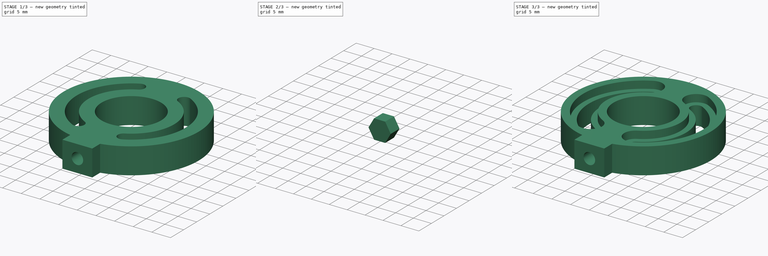
[diagram: build sequence overview — one tinted view per stage of 3, left to right]
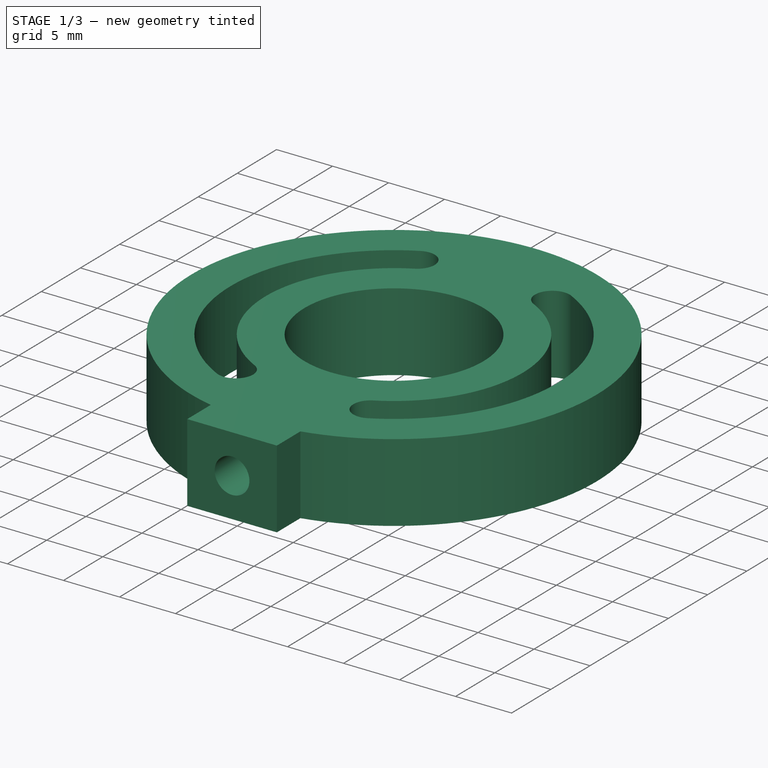
[diagram: stage 1 of 3 — iso view after this stage's code; geometry added in this stage tinted green]
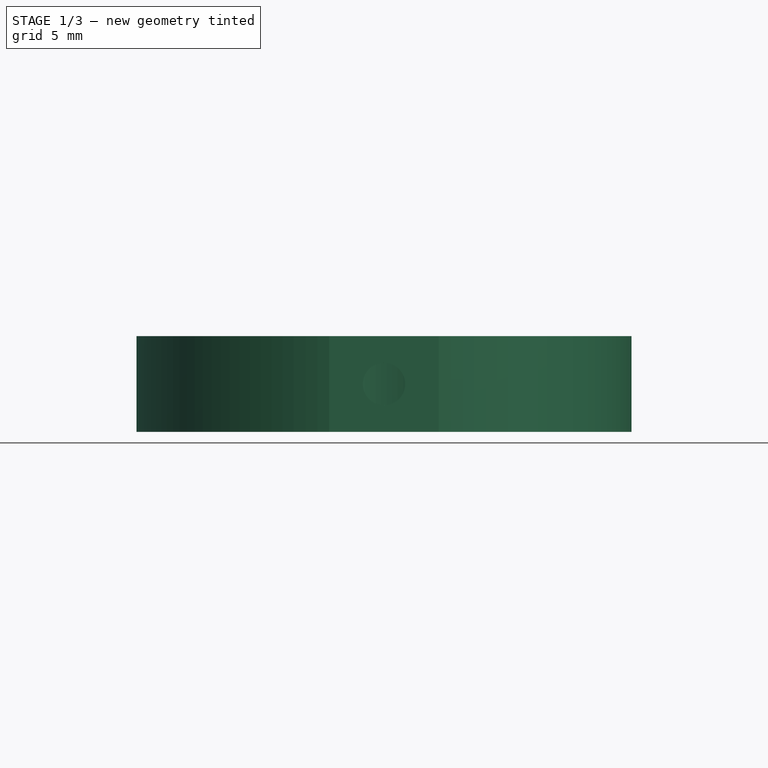
[diagram: stage 1 of 3 — front view after this stage's code; geometry added in this stage tinted green]
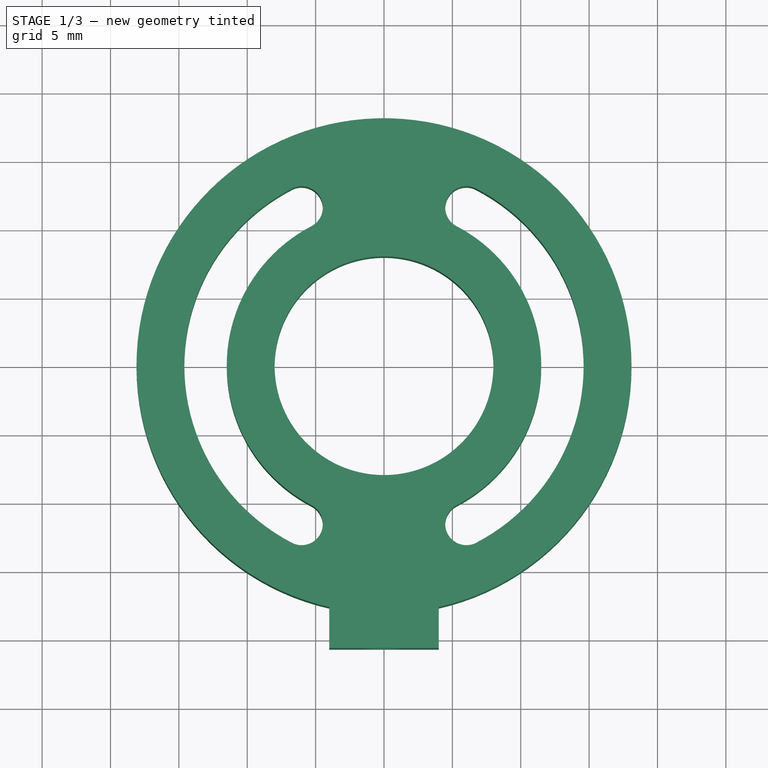
[diagram: stage 1 of 3 — top view after this stage's code; geometry added in this stage tinted green]
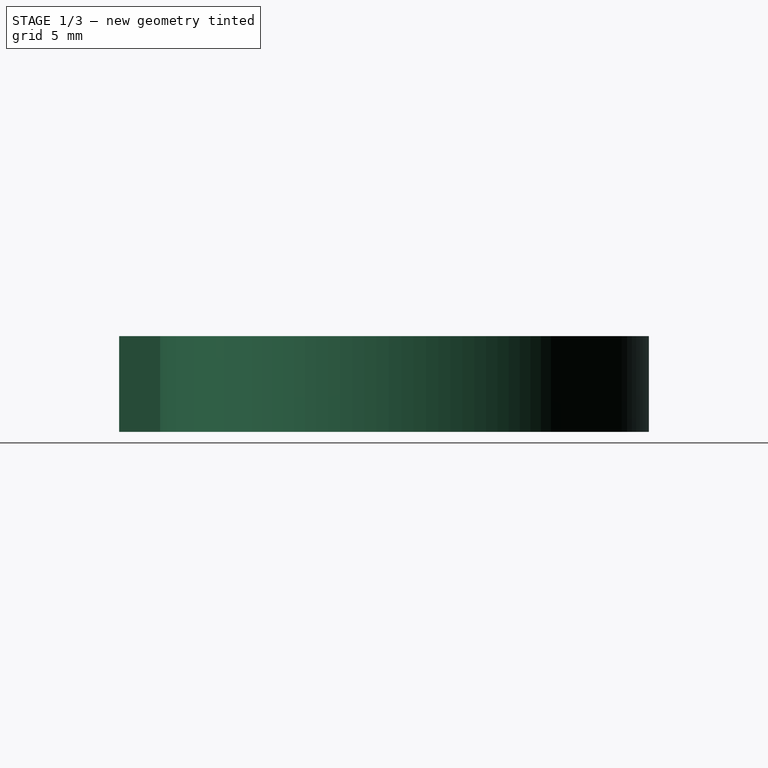
[diagram: stage 1 of 3 — right view after this stage's code; geometry added in this stage tinted green]
FCSTD DOCUMENT  (FreeCAD 0.16RUnknown)
Label: joint-i.008.top.screws
License: All rights reserved
LicenseURL: http://en.wikipedia.org/wiki/All_rights_reserved
objects: Sketcher::SketchObject×4, Part::Extrusion×2, PartDesign::Pocket×2, Part::Cut×1
note: 11 computed .brp shape members not serialized (recipe doc carries the construction recipe); baked Part::Feature solids carry a one-line shape summary decoded from their .brp

FEATURE [Sketcher::SketchObject] Sketch
  sketch-geometry (29):
    g0: Circle CenterX=0 CenterY=0 CenterZ=0 NormalX=0 NormalY=0 NormalZ=1 Radius=8
    g1: ArcOfCircle CenterX=0 CenterY=0 CenterZ=0 NormalX=0 NormalY=0 NormalZ=1 Radius=18.1 StartAngle=4.93522 EndAngle=10.7727
    g2: ArcOfCircle CenterX=0 CenterY=0 CenterZ=0 NormalX=0 NormalY=0 NormalZ=1 Radius=11.5 StartAngle=2.05076 EndAngle=4.23242
    g3: ArcOfCircle CenterX=0 CenterY=0 CenterZ=0 NormalX=0 NormalY=0 NormalZ=1 Radius=14.6 StartAngle=2.05076 EndAngle=4.23242
    g4: ArcOfCircle CenterX=0 CenterY=0 CenterZ=0 NormalX=0 NormalY=0 NormalZ=1 Radius=11.5 StartAngle=5.19235 EndAngle=7.37402
    g5: ArcOfCircle CenterX=0 CenterY=0 CenterZ=0 NormalX=0 NormalY=0 NormalZ=1 Radius=14.6 StartAngle=5.19235 EndAngle=7.37402
    g6: ArcOfCircle [constr] CenterX=0 CenterY=0 CenterZ=0 NormalX=0 NormalY=0 NormalZ=1 Radius=11.5 StartAngle=1.09083 EndAngle=2.05076
    g7: ArcOfCircle [constr] CenterX=0 CenterY=0 CenterZ=0 NormalX=0 NormalY=0 NormalZ=1 Radius=14.6 StartAngle=1.09083 EndAngle=2.05076
    g8: ArcOfCircle [constr] CenterX=0 CenterY=0 CenterZ=0 NormalX=0 NormalY=0 NormalZ=1 Radius=11.5 StartAngle=4.23242 EndAngle=5.19235
    g9: ArcOfCircle [constr] CenterX=0 CenterY=0 CenterZ=0 NormalX=0 NormalY=0 NormalZ=1 Radius=14.6 StartAngle=4.23242 EndAngle=5.19235
    g10: LineSegment [constr] StartX=-8.35765 StartY=16.0549 StartZ=0 EndX=-6.74153 EndY=12.9504 EndZ=0
    g11: LineSegment [constr] StartX=-6.74153 StartY=12.9504 StartZ=0 EndX=-5.31011 EndY=10.2006 EndZ=0
    g12: LineSegment [constr] StartX=-5.31011 StartY=10.2006 StartZ=0 EndX=-3.69399 EndY=7.09609 EndZ=0
    g13: LineSegment [constr] StartX=-3.69399 StartY=7.09609 StartZ=0 EndX=0 EndY=0 EndZ=0
    g14: LineSegment [constr] StartX=0 StartY=0 StartZ=0 EndX=5.31011 EndY=-10.2006 EndZ=0
    g15: LineSegment [constr] StartX=5.31011 StartY=-10.2006 StartZ=0 EndX=6.74153 EndY=-12.9504 EndZ=0
    g16: LineSegment [constr] StartX=6.74153 StartY=12.9504 StartZ=0 EndX=5.31011 EndY=10.2006 EndZ=0
    g17: LineSegment [constr] StartX=5.31011 StartY=10.2006 StartZ=0 EndX=0 EndY=0 EndZ=0
    g18: LineSegment [constr] StartX=0 StartY=0 StartZ=0 EndX=-5.31011 EndY=-10.2006 EndZ=0
    g19: LineSegment [constr] StartX=-5.31011 StartY=-10.2006 StartZ=0 EndX=-6.74153 EndY=-12.9504 EndZ=0
    g20: LineSegment [constr] StartX=-6.74153 StartY=12.9504 StartZ=0 EndX=6.74153 EndY=12.9504 EndZ=0
    g21: ArcOfCircle CenterX=-6.02582 CenterY=11.5755 CenterZ=0 NormalX=0 NormalY=0 NormalZ=1 Radius=1.55 StartAngle=5.19235 EndAngle=8.33395
    g22: ArcOfCircle CenterX=6.02582 CenterY=11.5755 CenterZ=0 NormalX=0 NormalY=0 NormalZ=1 Radius=1.55 StartAngle=1.09083 EndAngle=4.23242
    g23: ArcOfCircle CenterX=-6.02582 CenterY=-11.5755 CenterZ=0 NormalX=0 NormalY=0 NormalZ=1 Radius=1.55 StartAngle=4.23242 EndAngle=7.37402
    g24: ArcOfCircle CenterX=6.02582 CenterY=-11.5755 CenterZ=0 NormalX=0 NormalY=0 NormalZ=1 Radius=1.55 StartAngle=2.05076 EndAngle=5.19235
    g25: LineSegment StartX=-4 StartY=-17.6525 StartZ=0 EndX=-4 EndY=-20.6525 EndZ=0
    g26: LineSegment StartX=-4 StartY=-20.6525 StartZ=0 EndX=4 EndY=-20.6525 EndZ=0
    g27: LineSegment StartX=4 StartY=-20.6525 StartZ=0 EndX=4 EndY=-17.6525 EndZ=0
    g28: LineSegment [constr] StartX=-4 StartY=-17.6525 StartZ=0 EndX=4 EndY=-17.6525 EndZ=0
  constraints (80):
    c: Coincident(g0,g1)
    c: Coincident(g0,g2)
    c: Coincident(g0,g3)
    c: Coincident(g0,g4)
    c: Coincident(g0,g5)
    c: Coincident(g0,g6)
    c: Coincident(g0,g7)
    c: Coincident(g0,g8)
    c: Coincident(g0,g9)
    c: Coincident(g0,g-1)
    c: Coincident(g3,g7)
    c: Coincident(g2,g6)
    c: Coincident(g4,g6)
    c: Coincident(g5,g7)
    c: Coincident(g2,g8)
    c: Coincident(g3,g9)
    c: Coincident(g5,g9)
    c: Coincident(g4,g8)
    c: Coincident(g10,g11)
    c: Coincident(g11,g12)
    c: Coincident(g12,g13)
    c: Coincident(g13,g14)
    c: Coincident(g14,g15)
    c: Coincident(g16,g17)
    c: Coincident(g17,g18)
    c: Coincident(g18,g19)
    c: Coincident(g3,g19)
    c: Coincident(g2,g18)
    c: Coincident(g4,g14)
    c: Coincident(g5,g15)
    c: Coincident(g0,g13)
    c: Coincident(g0,g17)
    c: Coincident(g2,g11)
    c: Coincident(g3,g10)
    c: Coincident(g5,g16)
    c: Coincident(g4,g16)
    c: PointOnObject(g12,g0)
    c: PointOnObject(g10,g1)
    c: Parallel(g10,g11)
    c: Parallel(g11,g12)
    c: Parallel(g12,g13)
    c: Parallel(g13,g15)
    c: Parallel(g15,g14)
    c: Parallel(g19,g18)
    c: Parallel(g18,g17)
    c: Parallel(g17,g16)
    c: Horizontal(g20)
    c: Coincident(g5,g20)
    c: Coincident(g3,g20)
    c: Angle(g16,g11) = 0.959931
    c: Equal(g10,g12)
    c: Radius(g0) = 8
    c: Distance(g10) = 3.5
    c: Distance(g11) = 3.1
    c: Coincident(g3,g23)
    c: Coincident(g2,g23)
    c: Coincident(g4,g24)
    c: Coincident(g5,g24)
    c: PointOnObject(g24,g15)
    c: PointOnObject(g23,g19)
    c: Coincident(g3,g21)
    c: Coincident(g2,g21)
    c: Coincident(g4,g22)
    c: Coincident(g5,g22)
    c: PointOnObject(g22,g16)
    c: PointOnObject(g21,g11)
    c: Vertical(g25)
    c: Coincident(g25,g26)
    c: Horizontal(g26)
    c: Coincident(g26,g27)
    c: Vertical(g27)
    c: PointOnObject(g28,g1)
    c: PointOnObject(g28,g1)
    c: Horizontal(g28)
    c: DistanceX(g26,g26) = 8
    c: DistanceY(g27,g28) = 3
    c: Coincident(g1,g27)
    c: Coincident(g1,g25)
    c: Coincident(g1,g28)
    c: Coincident(g1,g28)
FEATURE [Part::Extrusion] Extrude
  Base = -> Sketch
  Dir = (0,0,7)
  Solid = true
FEATURE [Sketcher::SketchObject] Sketch001
  ExternalGeometry = -> [Extrude]
  Placement = pos=(0,-20.6525,0) rot=(1,0,0;1.5708rad)
  Support = -> Extrude [Face3]
  sketch-geometry (3):
    g0: LineSegment [constr] StartX=-4 StartY=7 StartZ=0 EndX=0 EndY=3.5 EndZ=0
    g1: LineSegment [constr] StartX=0 StartY=3.5 StartZ=0 EndX=4 EndY=0 EndZ=0
    g2: Circle CenterX=0 CenterY=3.5 CenterZ=0 NormalX=0 NormalY=0 NormalZ=1 Radius=1.55
  constraints (7):
    c: Coincident(g0,g1)
    c: Coincident(g0,g-3)
    c: Coincident(g1,g-4)
    c: Equal(g1,g0)
    c: Parallel(g1,g0)
    c: Coincident(g0,g2)
    c: Radius(g2) = 1.55
FEATURE [PartDesign::Pocket] Pocket
  Length = 0
  Sketch = -> Sketch001
  Type = 3
  UpToFace = -> Extrude [Face13]
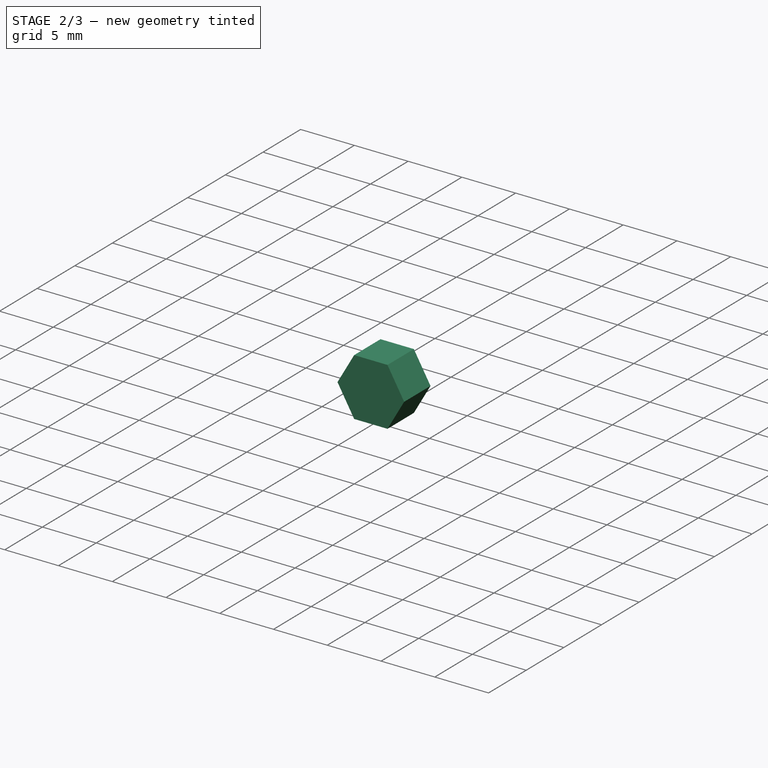
[diagram: stage 2 of 3 — iso view after this stage's code; geometry added in this stage tinted green]
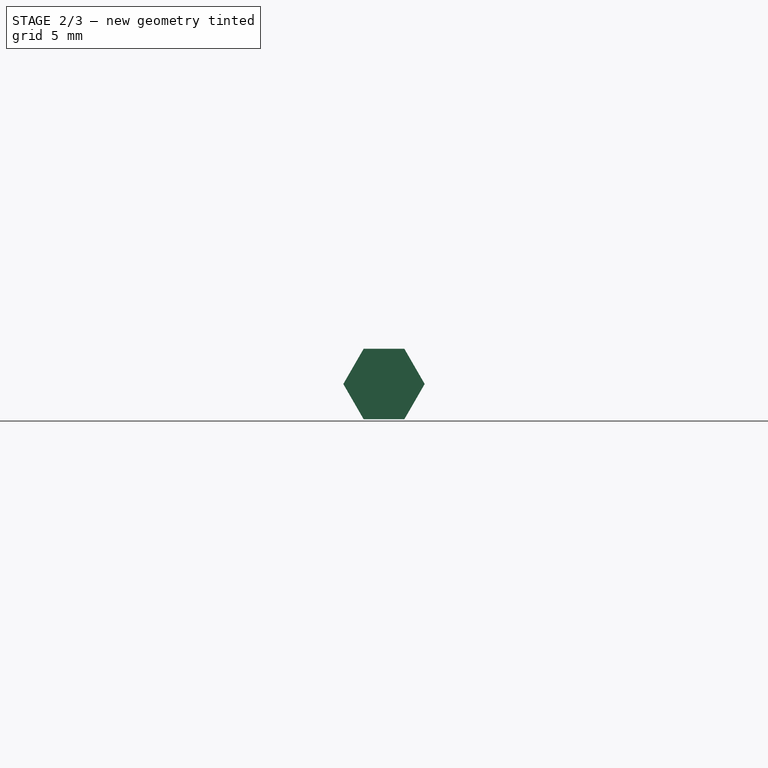
[diagram: stage 2 of 3 — front view after this stage's code; geometry added in this stage tinted green]
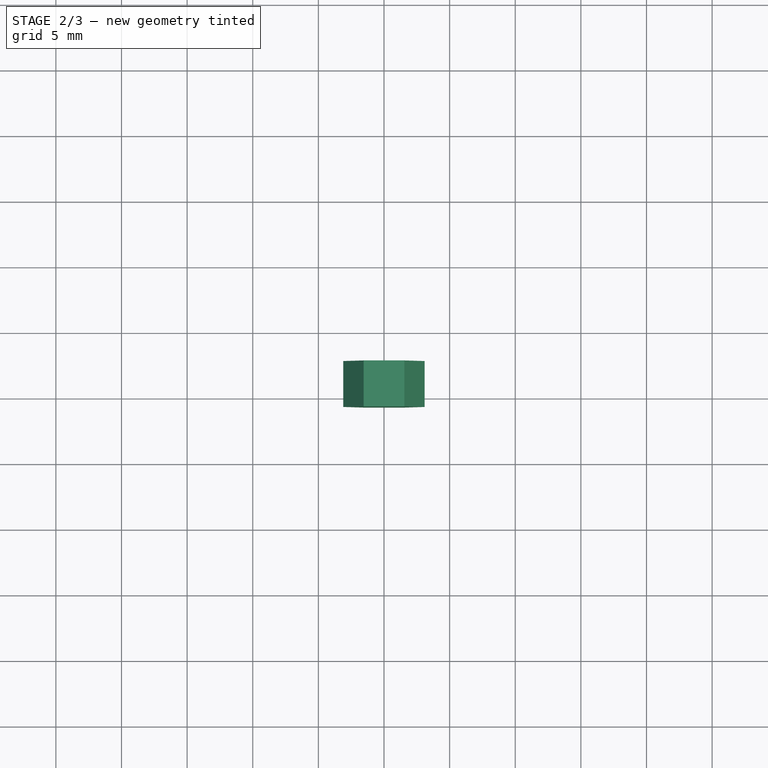
[diagram: stage 2 of 3 — top view after this stage's code; geometry added in this stage tinted green]
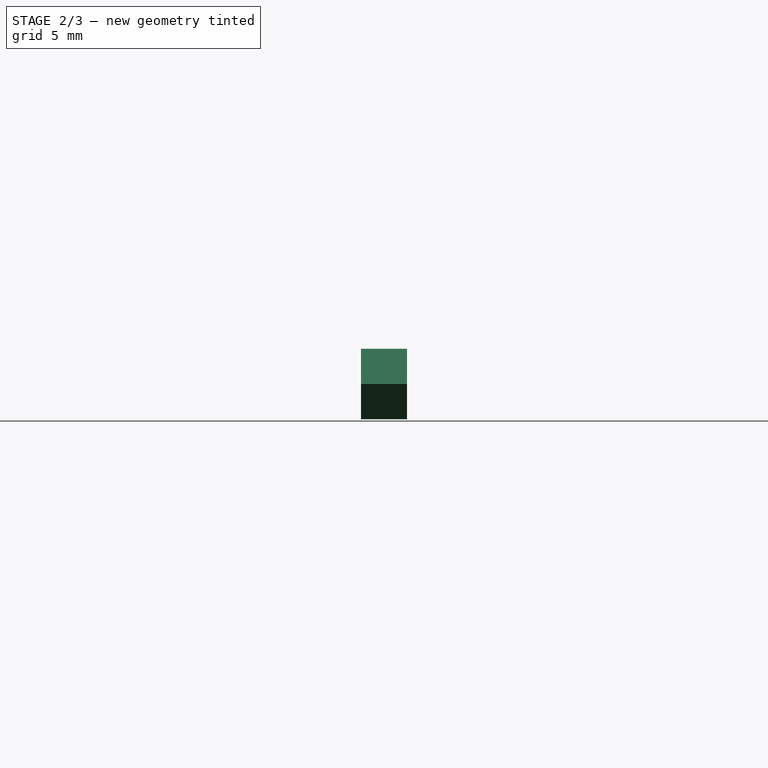
[diagram: stage 2 of 3 — right view after this stage's code; geometry added in this stage tinted green]
FEATURE [Sketcher::SketchObject] Sketch002
  ExternalGeometry = -> [Pocket]
  Placement = pos=(0,-20.6525,0) rot=(1,0,0;1.5708rad)
  Support = -> Pocket [Face8]
  sketch-geometry (7):
    g0: LineSegment StartX=-1.55 StartY=6.18468 StartZ=0 EndX=-3.1 EndY=3.5 EndZ=0
    g1: LineSegment StartX=-3.1 StartY=3.5 StartZ=0 EndX=-1.55 EndY=0.815321 EndZ=0
    g2: LineSegment StartX=-1.55 StartY=0.815321 StartZ=0 EndX=1.55 EndY=0.815321 EndZ=0
    g3: LineSegment StartX=1.55 StartY=0.815321 StartZ=0 EndX=3.1 EndY=3.5 EndZ=0
    g4: LineSegment StartX=3.1 StartY=3.5 StartZ=0 EndX=1.55 EndY=6.18468 EndZ=0
    g5: LineSegment StartX=1.55 StartY=6.18468 StartZ=0 EndX=-1.55 EndY=6.18468 EndZ=0
    g6: Circle [constr] CenterX=0 CenterY=3.5 CenterZ=0 NormalX=0 NormalY=0 NormalZ=1 Radius=3.1
  constraints (16):
    c: Coincident(g0,g1)
    c: Coincident(g1,g2)
    c: Coincident(g2,g3)
    c: Coincident(g3,g4)
    c: Coincident(g4,g5)
    c: Coincident(g5,g0)
    c: Equal(g0, g1-g5) x5
    c: PointOnObject(g0,g6)
    c: PointOnObject(g1,g6)
    c: PointOnObject(g2,g6)
    c: PointOnObject(g3,g6)
    c: PointOnObject(g4,g6)
    c: PointOnObject(g5,g6)
    c: Horizontal(g5)
    c: Coincident(g6,g-3)
    c: Radius(g6) = 3.1
FEATURE [Part::Extrusion] Extrude001
  Base = -> Sketch002
  Dir = (0,3.5,0)
  Placement = pos=(0,10,0) rot=(0,0,1;0rad)
  Solid = true
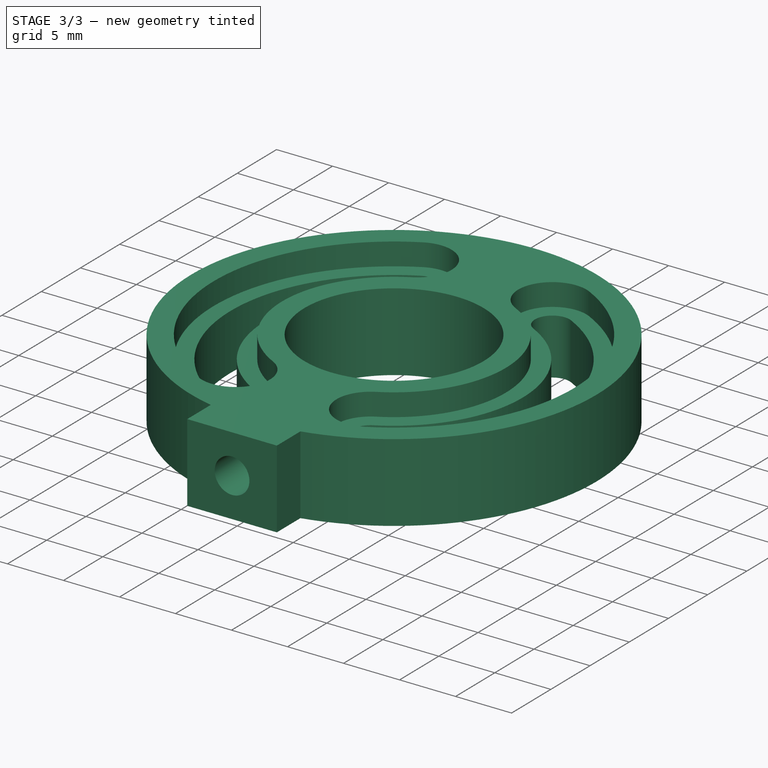
[diagram: stage 3 of 3 — iso view after this stage's code; geometry added in this stage tinted green]
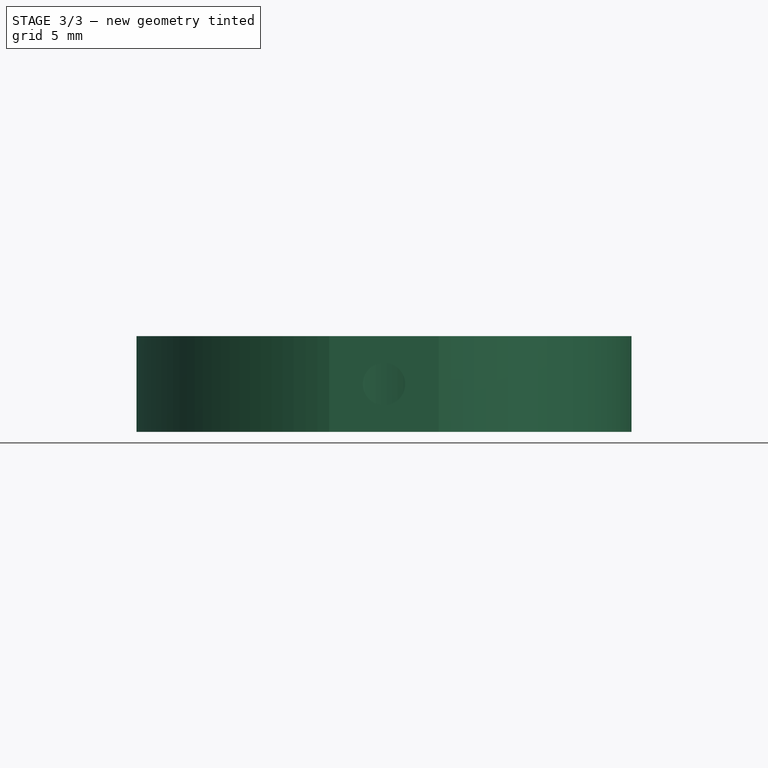
[diagram: stage 3 of 3 — front view after this stage's code; geometry added in this stage tinted green]
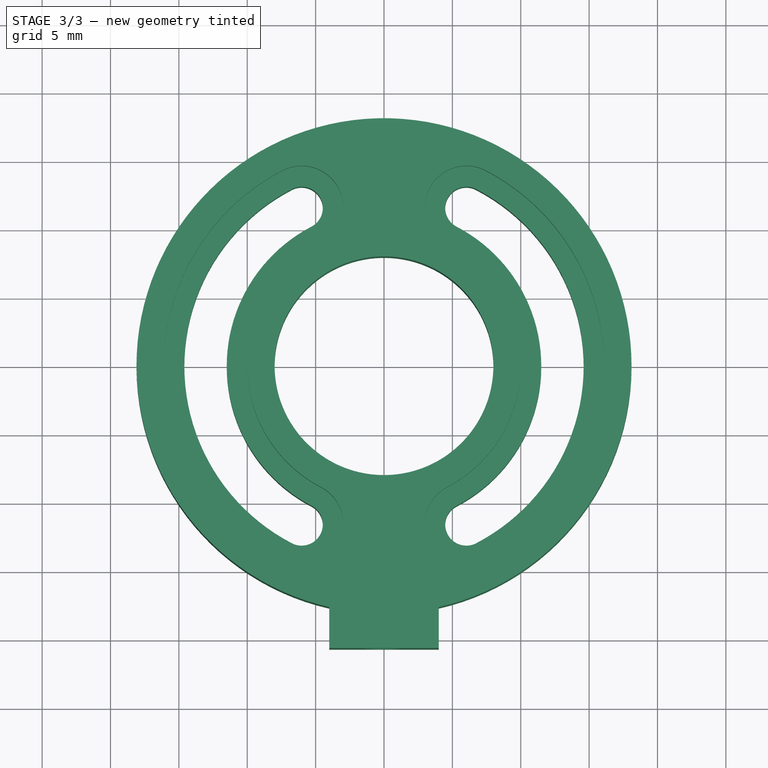
[diagram: stage 3 of 3 — top view after this stage's code; geometry added in this stage tinted green]
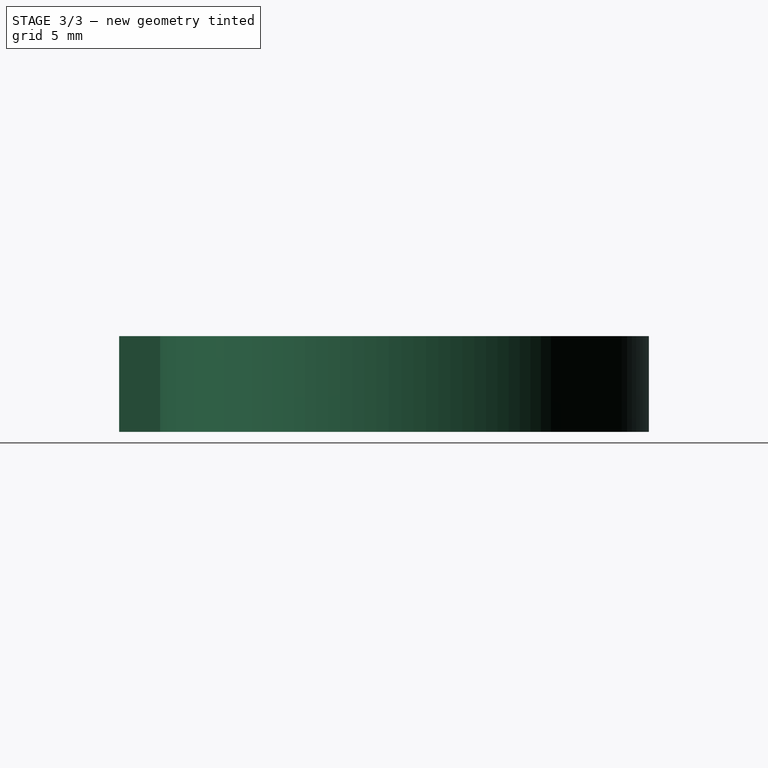
[diagram: stage 3 of 3 — right view after this stage's code; geometry added in this stage tinted green]
FEATURE [Part::Cut] Cut
  Base = -> Pocket
  Tool = -> Extrude001
FEATURE [Sketcher::SketchObject] Sketch003
  ExternalGeometry = -> [Cut]
  Placement = pos=(0,0,7) rot=(0,0,1;0rad)
  Support = -> Cut [Face4]
  sketch-geometry (20):
    g0: LineSegment [constr] StartX=-7.43415 StartY=14.2809 StartZ=0 EndX=-6.74153 EndY=12.9504 EndZ=0
    g1: LineSegment [constr] StartX=-6.74153 StartY=12.9504 StartZ=0 EndX=-5.31011 EndY=10.2006 EndZ=0
    g2: LineSegment [constr] StartX=-5.31011 StartY=10.2006 StartZ=0 EndX=-4.61749 EndY=8.87011 EndZ=0
    g3: LineSegment [constr] StartX=4.61749 StartY=-8.87011 StartZ=0 EndX=5.31011 EndY=-10.2006 EndZ=0
    g4: LineSegment [constr] StartX=5.31011 StartY=-10.2006 StartZ=0 EndX=6.74153 EndY=-12.9504 EndZ=0
    g5: LineSegment [constr] StartX=6.74153 StartY=-12.9504 StartZ=0 EndX=7.43415 EndY=-14.2809 EndZ=0
    g6: LineSegment [constr] StartX=7.43415 StartY=14.2809 StartZ=0 EndX=6.74153 EndY=12.9504 EndZ=0
    g7: LineSegment [constr] StartX=6.74153 StartY=12.9504 StartZ=0 EndX=5.31011 EndY=10.2006 EndZ=0
    g8: LineSegment [constr] StartX=5.31011 StartY=10.2006 StartZ=0 EndX=4.61749 EndY=8.87011 EndZ=0
    g9: LineSegment [constr] StartX=-4.61749 StartY=-8.87011 StartZ=0 EndX=-5.31011 EndY=-10.2006 EndZ=0
    g10: LineSegment [constr] StartX=-5.31011 StartY=-10.2006 StartZ=0 EndX=-6.74153 EndY=-12.9504 EndZ=0
    g11: LineSegment [constr] StartX=-6.74153 StartY=-12.9504 StartZ=0 EndX=-7.43415 EndY=-14.2809 EndZ=0
    g12: ArcOfCircle CenterX=-6.02582 CenterY=11.5755 CenterZ=0 NormalX=0 NormalY=0 NormalZ=1 Radius=3.05 StartAngle=5.19235 EndAngle=8.33395
    g13: ArcOfCircle CenterX=6.02582 CenterY=11.5755 CenterZ=0 NormalX=0 NormalY=0 NormalZ=1 Radius=3.05 StartAngle=1.09083 EndAngle=4.23242
    g14: ArcOfCircle CenterX=-6.02582 CenterY=-11.5755 CenterZ=0 NormalX=0 NormalY=0 NormalZ=1 Radius=3.05 StartAngle=4.23242 EndAngle=7.37402
    g15: ArcOfCircle CenterX=6.02582 CenterY=-11.5755 CenterZ=0 NormalX=0 NormalY=0 NormalZ=1 Radius=3.05 StartAngle=2.05076 EndAngle=5.19235
    g16: ArcOfCircle CenterX=0 CenterY=0 CenterZ=0 NormalX=0 NormalY=0 NormalZ=1 Radius=10 StartAngle=2.05076 EndAngle=4.23242
    g17: ArcOfCircle CenterX=0 CenterY=0 CenterZ=0 NormalX=0 NormalY=0 NormalZ=1 Radius=16.1 StartAngle=2.05076 EndAngle=4.23242
    g18: ArcOfCircle CenterX=0 CenterY=0 CenterZ=0 NormalX=0 NormalY=0 NormalZ=1 Radius=10 StartAngle=5.19235 EndAngle=7.37402
    g19: ArcOfCircle CenterX=0 CenterY=0 CenterZ=0 NormalX=0 NormalY=0 NormalZ=1 Radius=16.1 StartAngle=5.19235 EndAngle=7.37402
  constraints (60):
    c: Coincident(g0,g1)
    c: Coincident(g1,g2)
    c: Coincident(g3,g4)
    c: Coincident(g4,g5)
    c: Coincident(g6,g7)
    c: Coincident(g7,g8)
    c: Coincident(g9,g10)
    c: Coincident(g10,g11)
    c: Coincident(g0,g-4)
    c: Coincident(g1,g-3)
    c: Coincident(g9,g-3)
    c: Coincident(g10,g-4)
    c: Coincident(g4,g-6)
    c: Coincident(g3,g-5)
    c: Coincident(g7,g-5)
    c: Coincident(g6,g-6)
    c: Parallel(g0,g1)
    c: Parallel(g1,g2)
    c: Parallel(g3,g4)
    c: Parallel(g4,g5)
    c: Parallel(g8,g7)
    c: Parallel(g7,g6)
    c: Parallel(g11,g10)
    c: Parallel(g10,g9)
    c: Equal(g11,g9)
    c: Equal(g9,g3)
    c: Equal(g3,g5)
    c: Equal(g5,g2)
    c: Equal(g2,g0)
    c: Equal(g0,g8)
    c: Equal(g8,g6)
    c: Distance(g0,g2) = 6.1
    c: Coincident(g2,g12)
    c: Coincident(g2,g16)
    c: Coincident(g0,g12)
    c: Coincident(g0,g17)
    c: Coincident(g9,g14)
    c: Coincident(g9,g16)
    c: Coincident(g11,g14)
    c: Coincident(g11,g17)
    c: Coincident(g3,g15)
    c: Coincident(g3,g18)
    c: Coincident(g5,g15)
    c: Coincident(g5,g19)
    c: Coincident(g8,g13)
    c: Coincident(g8,g18)
    c: Coincident(g6,g13)
    c: Coincident(g6,g19)
    c: PointOnObject(g13,g7)
    c: PointOnObject(g12,g1)
    c: PointOnObject(g14,g10)
    c: PointOnObject(g15,g4)
    c: Coincident(g16,g17)
    c: Coincident(g16,g18)
    c: Coincident(g16,g19)
    c: Coincident(g16,g-6)
    c: Coincident(g16,g-5)
    c: Coincident(g16,g-4)
    c: Coincident(g16,g-3)
    c: Coincident(g16,g-1)
FEATURE [PartDesign::Pocket] Pocket001
  Length = 2
  Sketch = -> Sketch003
  Type = 0
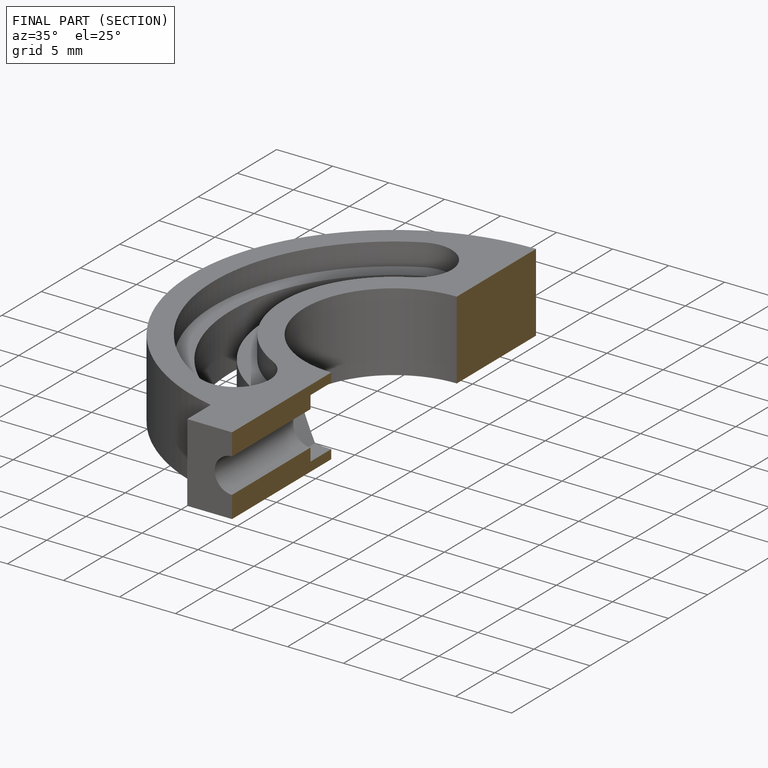
[diagram: finished part — half-section view (interior)]
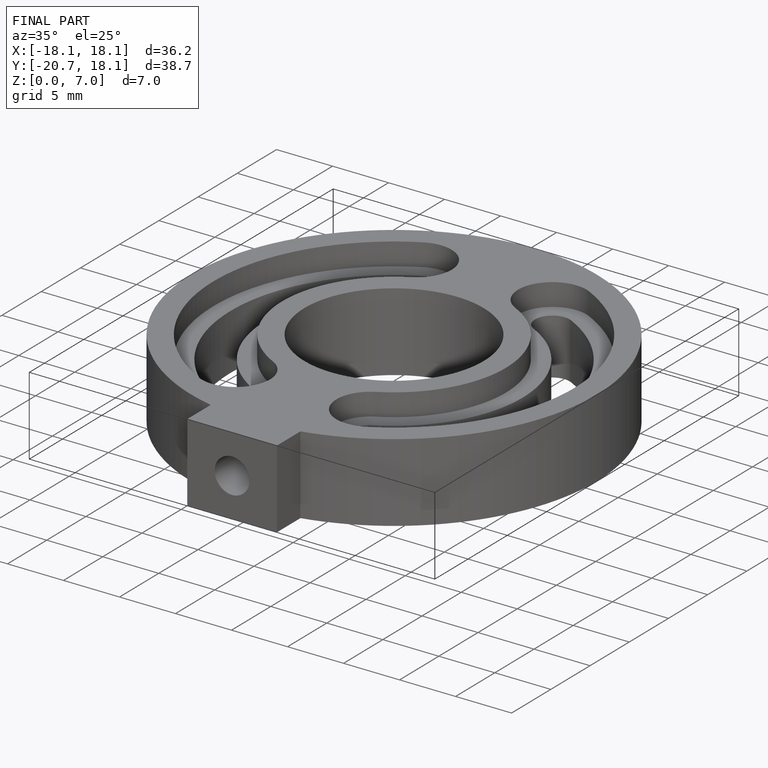
[diagram: finished part — iso view with bounding-box wireframe]
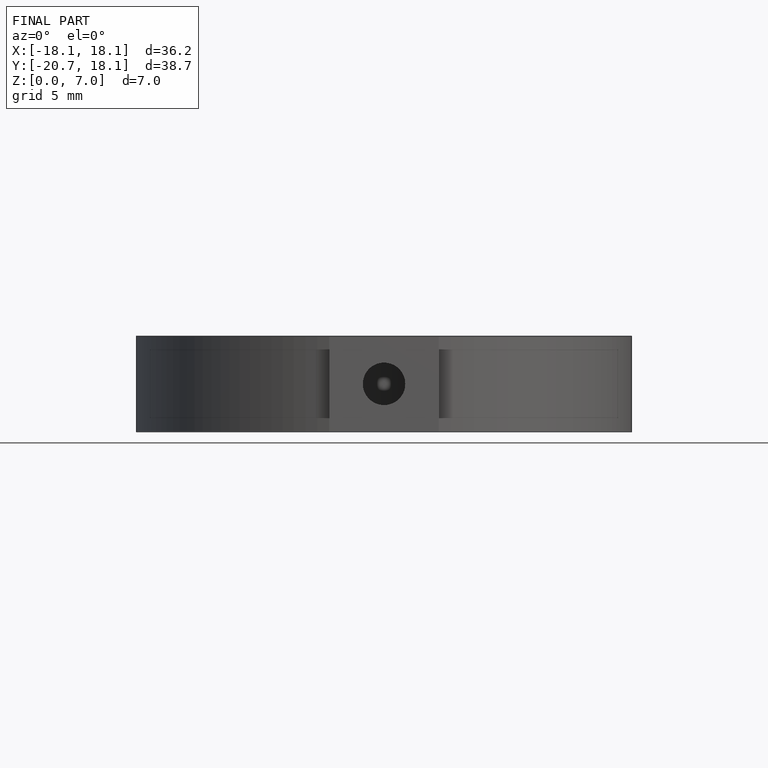
[diagram: finished part — front view with bounding-box wireframe]
